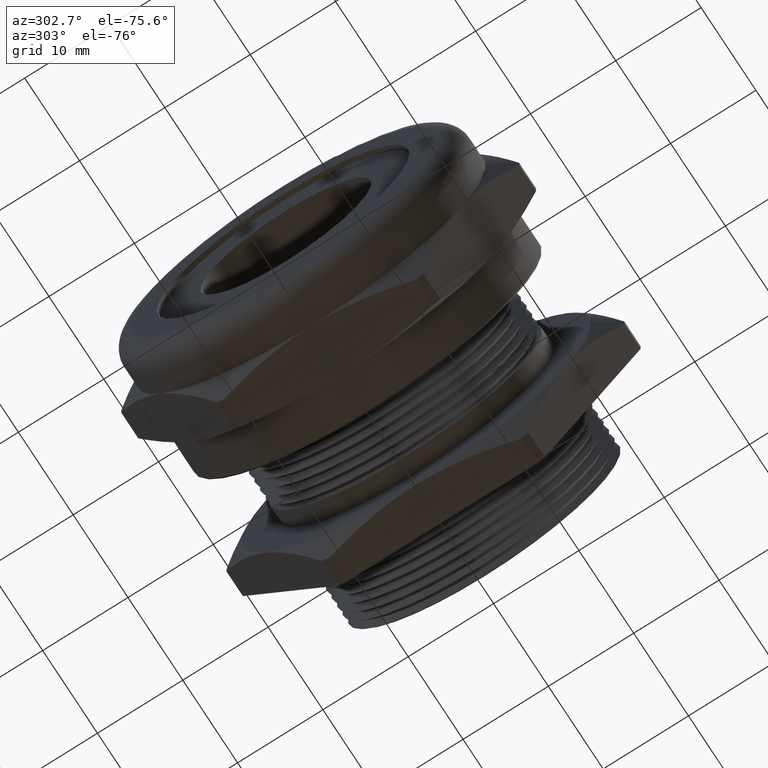
[diagram: clean part render]
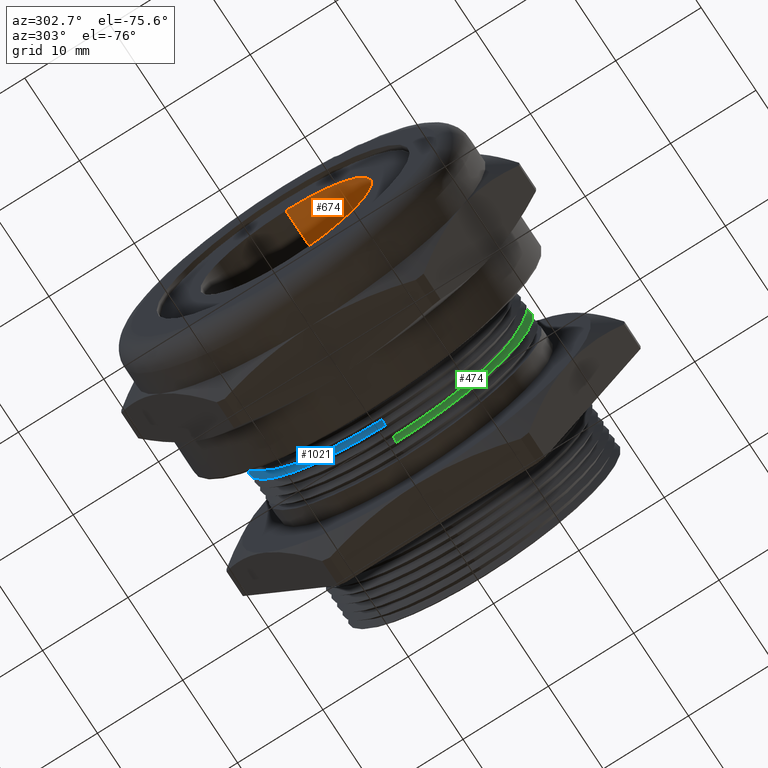
[diagram: same view with three faces highlighted in distinct colors, each labeled with its STEP entity id]
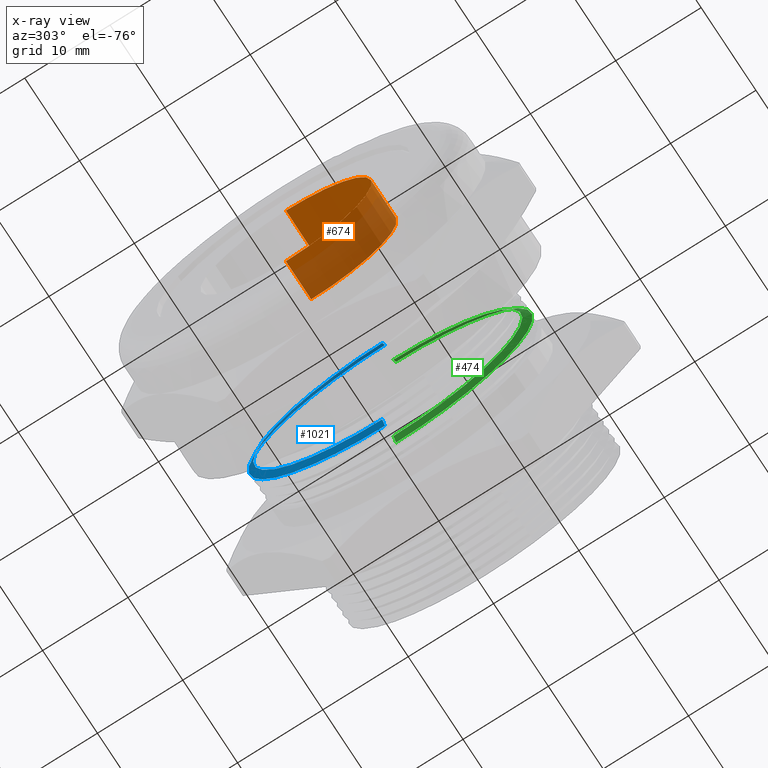
[diagram: x-ray of the same camera — body ghosted, the three highlighted faces saturated]
A machine part, auxiliary view with three faces highlighted in distinct colors.
The next image is the same camera in x-ray (body ghosted, the three faces saturated) — at least one of them is partly hidden behind the body in this view.
Their STEP definitions:

[orange] entity #674 — the highlighted cylindrical surface (partial cylindrical patch) has radius 10.033 mm, axis along (1, 0, 0).
#674 = ADVANCED_FACE ( 'NONE', ( #2429 ), #2427, .F. ) ;
#675 = EDGE_LOOP ( 'NONE', ( #676, #680, #750, #752 ) ) ;
#676 = ORIENTED_EDGE ( 'NONE', *, *, #677, .F. ) ;
#677 = EDGE_CURVE ( 'NONE', #678, #679, #2422, .T. ) ;
#678 = VERTEX_POINT ( 'NONE', #2418 ) ;
#679 = VERTEX_POINT ( 'NONE', #2417 ) ;
#680 = ORIENTED_EDGE ( 'NONE', *, *, #681, .T. ) ;
#681 = EDGE_CURVE ( 'NONE', #678, #682, #2416, .T. ) ;
#682 = VERTEX_POINT ( 'NONE', #2412 ) ;
#683 = VERTEX_POINT ( 'NONE', #2475 ) ;
#750 = ORIENTED_EDGE ( 'NONE', *, *, #751, .T. ) ;
#751 = EDGE_CURVE ( 'NONE', #682, #683, #2550, .T. ) ;
#752 = ORIENTED_EDGE ( 'NONE', *, *, #753, .F. ) ;
#753 = EDGE_CURVE ( 'NONE', #679, #683, #2546, .T. ) ;
#2412 = CARTESIAN_POINT ( 'NONE',  ( -0.5234999999999998500, 4.837354856632045600E-017, 0.3950000000000000200 ) ) ;
#2413 = DIRECTION ( 'NONE',  ( 1.000000000000000000, 0.0000000000000000000, 0.0000000000000000000 ) ) ;
#2414 = VECTOR ( 'NONE', #2413, 39.37007874015748100 ) ;
#2415 = CARTESIAN_POINT ( 'NONE',  ( 0.5452584728366800500, 4.837354856632045600E-017, 0.3950000000000000200 ) ) ;
#2416 = LINE ( 'NONE', #2415, #2414 ) ;
#2417 = CARTESIAN_POINT ( 'NONE',  ( -0.7049999999999999600, 0.0000000000000000000, -0.3950000000000000200 ) ) ;
#2418 = CARTESIAN_POINT ( 'NONE',  ( -0.7049999999999999600, 4.837354856632045600E-017, 0.3950000000000000200 ) ) ;
#2419 = DIRECTION ( 'NONE',  ( 0.0000000000000000000, 0.0000000000000000000, -1.000000000000000000 ) ) ;
#2420 = DIRECTION ( 'NONE',  ( 1.000000000000000000, 0.0000000000000000000, 0.0000000000000000000 ) ) ;
#2421 = AXIS2_PLACEMENT_3D ( 'NONE', #2428, #2420, #2419 ) ;
#2422 = CIRCLE ( 'NONE', #2421, 0.3950000000000000200 ) ;
#2423 = DIRECTION ( 'NONE',  ( 0.0000000000000000000, 0.0000000000000000000, -1.000000000000000000 ) ) ;
#2424 = DIRECTION ( 'NONE',  ( 1.000000000000000000, 0.0000000000000000000, 0.0000000000000000000 ) ) ;
#2425 = CARTESIAN_POINT ( 'NONE',  ( 0.5452584728366800500, 0.0000000000000000000, 0.0000000000000000000 ) ) ;
#2426 = AXIS2_PLACEMENT_3D ( 'NONE', #2425, #2424, #2423 ) ;
#2427 = CYLINDRICAL_SURFACE ( 'NONE', #2426, 0.3950000000000000200 ) ;
#2428 = CARTESIAN_POINT ( 'NONE',  ( -0.7049999999999999600, 0.0000000000000000000, 0.0000000000000000000 ) ) ;
#2429 = FACE_OUTER_BOUND ( 'NONE', #675, .T. ) ;
#2475 = CARTESIAN_POINT ( 'NONE',  ( -0.5234999999999998500, 0.0000000000000000000, -0.3950000000000000200 ) ) ;
#2543 = DIRECTION ( 'NONE',  ( 1.000000000000000000, 0.0000000000000000000, 0.0000000000000000000 ) ) ;
#2544 = VECTOR ( 'NONE', #2543, 39.37007874015748100 ) ;
#2545 = CARTESIAN_POINT ( 'NONE',  ( 0.5452584728366800500, 0.0000000000000000000, -0.3950000000000000200 ) ) ;
#2546 = LINE ( 'NONE', #2545, #2544 ) ;
#2547 = DIRECTION ( 'NONE',  ( 0.0000000000000000000, 0.0000000000000000000, -1.000000000000000000 ) ) ;
#2548 = DIRECTION ( 'NONE',  ( 1.000000000000000000, 0.0000000000000000000, 0.0000000000000000000 ) ) ;
#2549 = AXIS2_PLACEMENT_3D ( 'NONE', #2556, #2548, #2547 ) ;
#2550 = CIRCLE ( 'NONE', #2549, 0.3950000000000000200 ) ;
#2556 = CARTESIAN_POINT ( 'NONE',  ( -0.5234999999999998500, 0.0000000000000000000, 0.0000000000000000000 ) ) ;

[blue] entity #1021 — the highlighted conical surface has half-angle 60 deg.
#1015 = ORIENTED_EDGE ( 'NONE', *, *, #1016, .T. ) ;
#1016 = EDGE_CURVE ( 'NONE', #1025, #1090, #3094, .T. ) ;
#1019 = VERTEX_POINT ( 'NONE', #3082 ) ;
#1021 = ADVANCED_FACE ( 'NONE', ( #3077 ), #3076, .T. ) ;
#1022 = EDGE_LOOP ( 'NONE', ( #1023, #1015, #1081, #1082 ) ) ;
#1023 = ORIENTED_EDGE ( 'NONE', *, *, #1024, .F. ) ;
#1024 = EDGE_CURVE ( 'NONE', #1025, #1026, #3137, .T. ) ;
#1025 = VERTEX_POINT ( 'NONE', #3128 ) ;
#1026 = VERTEX_POINT ( 'NONE', #3127 ) ;
#1081 = ORIENTED_EDGE ( 'NONE', *, *, #1089, .T. ) ;
#1082 = ORIENTED_EDGE ( 'NONE', *, *, #1083, .F. ) ;
#1083 = EDGE_CURVE ( 'NONE', #1026, #1019, #3206, .T. ) ;
#1089 = EDGE_CURVE ( 'NONE', #1090, #1019, #3258, .T. ) ;
#1090 = VERTEX_POINT ( 'NONE', #3253 ) ;
#3076 = CONICAL_SURFACE ( 'NONE', #3136, 0.5953589838486220700, 1.047197551196600500 ) ;
#3077 = FACE_OUTER_BOUND ( 'NONE', #1022, .T. ) ;
#3082 = CARTESIAN_POINT ( 'NONE',  ( 0.006900000000000051100, 0.0000000000000000000, -0.6299999999999997800 ) ) ;
#3087 = DIRECTION ( 'NONE',  ( 0.4999999999999976700, 1.060575238724908600E-016, 0.8660254037844400400 ) ) ;
#3088 = VECTOR ( 'NONE', #3087, 39.37007874015748100 ) ;
#3089 = CARTESIAN_POINT ( 'NONE',  ( -0.01309999999999995700, 7.291044739138358200E-017, 0.5953589838486220700 ) ) ;
#3094 = LINE ( 'NONE', #3089, #3088 ) ;
#3127 = CARTESIAN_POINT ( 'NONE',  ( -0.01309999999999995700, 7.503159786883340000E-017, -0.5953589838486220700 ) ) ;
#3128 = CARTESIAN_POINT ( 'NONE',  ( -0.01309999999999995700, 0.0000000000000000000, 0.5953589838486220700 ) ) ;
#3129 = DIRECTION ( 'NONE',  ( 0.0000000000000000000, 0.0000000000000000000, 1.000000000000000000 ) ) ;
#3130 = DIRECTION ( 'NONE',  ( -1.000000000000000000, 0.0000000000000000000, 0.0000000000000000000 ) ) ;
#3131 = CARTESIAN_POINT ( 'NONE',  ( -0.01309999999999995700, 0.0000000000000000000, 0.0000000000000000000 ) ) ;
#3132 = AXIS2_PLACEMENT_3D ( 'NONE', #3131, #3130, #3129 ) ;
#3133 = DIRECTION ( 'NONE',  ( 0.0000000000000000000, 0.0000000000000000000, -1.000000000000000000 ) ) ;
#3134 = DIRECTION ( 'NONE',  ( 1.000000000000000000, 0.0000000000000000000, 0.0000000000000000000 ) ) ;
#3135 = CARTESIAN_POINT ( 'NONE',  ( -0.01309999999999995700, 0.0000000000000000000, 0.0000000000000000000 ) ) ;
#3136 = AXIS2_PLACEMENT_3D ( 'NONE', #3135, #3134, #3133 ) ;
#3137 = CIRCLE ( 'NONE', #3132, 0.5953589838486220700 ) ;
#3203 = DIRECTION ( 'NONE',  ( 0.4999999999999976700, 0.0000000000000000000, -0.8660254037844400400 ) ) ;
#3204 = VECTOR ( 'NONE', #3203, 39.37007874015748100 ) ;
#3205 = CARTESIAN_POINT ( 'NONE',  ( -0.01309999999999995700, 0.0000000000000000000, -0.5953589838486220700 ) ) ;
#3206 = LINE ( 'NONE', #3205, #3204 ) ;
#3253 = CARTESIAN_POINT ( 'NONE',  ( 0.006900000000000051100, 7.715274834628324100E-017, 0.6299999999999997800 ) ) ;
#3254 = DIRECTION ( 'NONE',  ( 0.0000000000000000000, 0.0000000000000000000, 1.000000000000000000 ) ) ;
#3255 = DIRECTION ( 'NONE',  ( -1.000000000000000000, 0.0000000000000000000, 0.0000000000000000000 ) ) ;
#3256 = CARTESIAN_POINT ( 'NONE',  ( 0.006900000000000051100, 0.0000000000000000000, 0.0000000000000000000 ) ) ;
#3257 = AXIS2_PLACEMENT_3D ( 'NONE', #3256, #3255, #3254 ) ;
#3258 = CIRCLE ( 'NONE', #3257, 0.6299999999999997800 ) ;

[green] entity #474 — the highlighted conical surface has half-angle 60 deg.
#468 = EDGE_CURVE ( 'NONE', #913, #912, #2118, .T. ) ;
#474 = ADVANCED_FACE ( 'NONE', ( #2109 ), #2108, .T. ) ;
#475 = EDGE_LOOP ( 'NONE', ( #477, #495, #488, #493 ) ) ;
#477 = ORIENTED_EDGE ( 'NONE', *, *, #915, .F. ) ;
#488 = ORIENTED_EDGE ( 'NONE', *, *, #964, .T. ) ;
#493 = ORIENTED_EDGE ( 'NONE', *, *, #494, .T. ) ;
#494 = EDGE_CURVE ( 'NONE', #997, #905, #2141, .T. ) ;
#495 = ORIENTED_EDGE ( 'NONE', *, *, #468, .F. ) ;
#905 = VERTEX_POINT ( 'NONE', #2865 ) ;
#912 = VERTEX_POINT ( 'NONE', #2912 ) ;
#913 = VERTEX_POINT ( 'NONE', #2911 ) ;
#915 = EDGE_CURVE ( 'NONE', #912, #905, #2910, .T. ) ;
#964 = EDGE_CURVE ( 'NONE', #913, #997, #3002, .T. ) ;
#997 = VERTEX_POINT ( 'NONE', #3066 ) ;
#2103 = DIRECTION ( 'NONE',  ( 0.0000000000000000000, 0.0000000000000000000, -1.000000000000000000 ) ) ;
#2104 = DIRECTION ( 'NONE',  ( 1.000000000000000000, 0.0000000000000000000, 0.0000000000000000000 ) ) ;
#2105 = CARTESIAN_POINT ( 'NONE',  ( 0.06690000000000004300, 0.0000000000000000000, 0.0000000000000000000 ) ) ;
#2106 = AXIS2_PLACEMENT_3D ( 'NONE', #2105, #2104, #2103 ) ;
#2108 = CONICAL_SURFACE ( 'NONE', #2106, 0.5953589838486220700, 1.047197551196600500 ) ;
#2109 = FACE_OUTER_BOUND ( 'NONE', #475, .T. ) ;
#2115 = DIRECTION ( 'NONE',  ( 0.0000000000000000000, 0.0000000000000000000, 1.000000000000000000 ) ) ;
#2116 = DIRECTION ( 'NONE',  ( -1.000000000000000000, 0.0000000000000000000, 0.0000000000000000000 ) ) ;
#2117 = AXIS2_PLACEMENT_3D ( 'NONE', #2123, #2116, #2115 ) ;
#2118 = CIRCLE ( 'NONE', #2117, 0.5953589838486220700 ) ;
#2123 = CARTESIAN_POINT ( 'NONE',  ( 0.06690000000000004300, 0.0000000000000000000, 0.0000000000000000000 ) ) ;
#2133 = DIRECTION ( 'NONE',  ( 0.0000000000000000000, 0.0000000000000000000, 1.000000000000000000 ) ) ;
#2134 = DIRECTION ( 'NONE',  ( -1.000000000000000000, 0.0000000000000000000, 0.0000000000000000000 ) ) ;
#2135 = CARTESIAN_POINT ( 'NONE',  ( 0.08690000000000003300, 0.0000000000000000000, 0.0000000000000000000 ) ) ;
#2136 = AXIS2_PLACEMENT_3D ( 'NONE', #2135, #2134, #2133 ) ;
#2141 = CIRCLE ( 'NONE', #2136, 0.6299999999999997800 ) ;
#2865 = CARTESIAN_POINT ( 'NONE',  ( 0.08690000000000003300, 7.715274834628324100E-017, 0.6299999999999997800 ) ) ;
#2907 = DIRECTION ( 'NONE',  ( 0.4999999999999976700, 1.060575238724908600E-016, 0.8660254037844400400 ) ) ;
#2908 = VECTOR ( 'NONE', #2907, 39.37007874015748100 ) ;
#2909 = CARTESIAN_POINT ( 'NONE',  ( 0.06690000000000004300, 7.291044739138358200E-017, 0.5953589838486220700 ) ) ;
#2910 = LINE ( 'NONE', #2909, #2908 ) ;
#2911 = CARTESIAN_POINT ( 'NONE',  ( 0.06690000000000004300, 7.503159786883340000E-017, -0.5953589838486220700 ) ) ;
#2912 = CARTESIAN_POINT ( 'NONE',  ( 0.06690000000000004300, 0.0000000000000000000, 0.5953589838486220700 ) ) ;
#2999 = DIRECTION ( 'NONE',  ( 0.4999999999999976700, 0.0000000000000000000, -0.8660254037844400400 ) ) ;
#3000 = VECTOR ( 'NONE', #2999, 39.37007874015748100 ) ;
#3001 = CARTESIAN_POINT ( 'NONE',  ( 0.06690000000000004300, 0.0000000000000000000, -0.5953589838486220700 ) ) ;
#3002 = LINE ( 'NONE', #3001, #3000 ) ;
#3066 = CARTESIAN_POINT ( 'NONE',  ( 0.08690000000000003300, 0.0000000000000000000, -0.6299999999999997800 ) ) ;